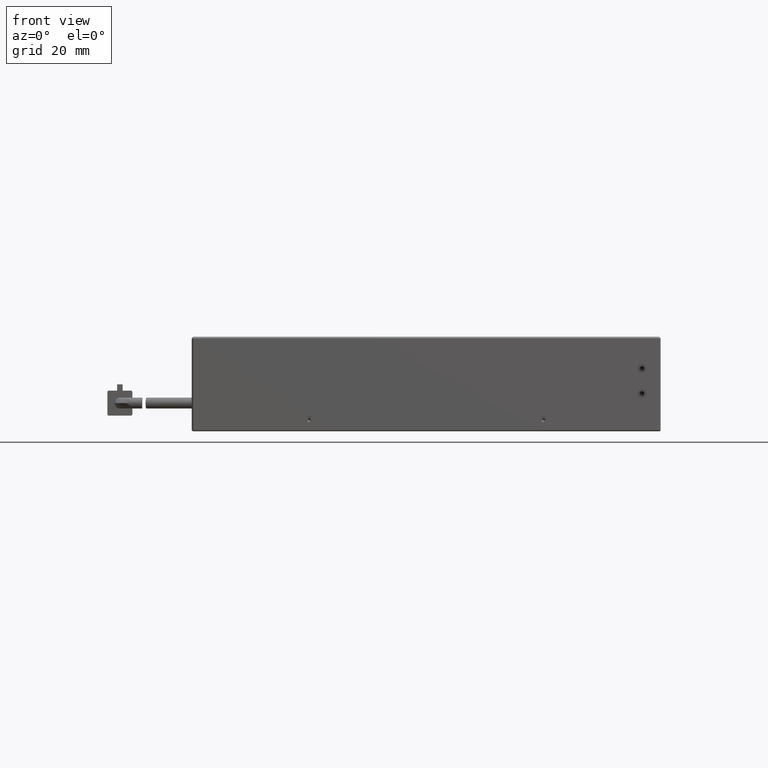
[diagram: clean part render]
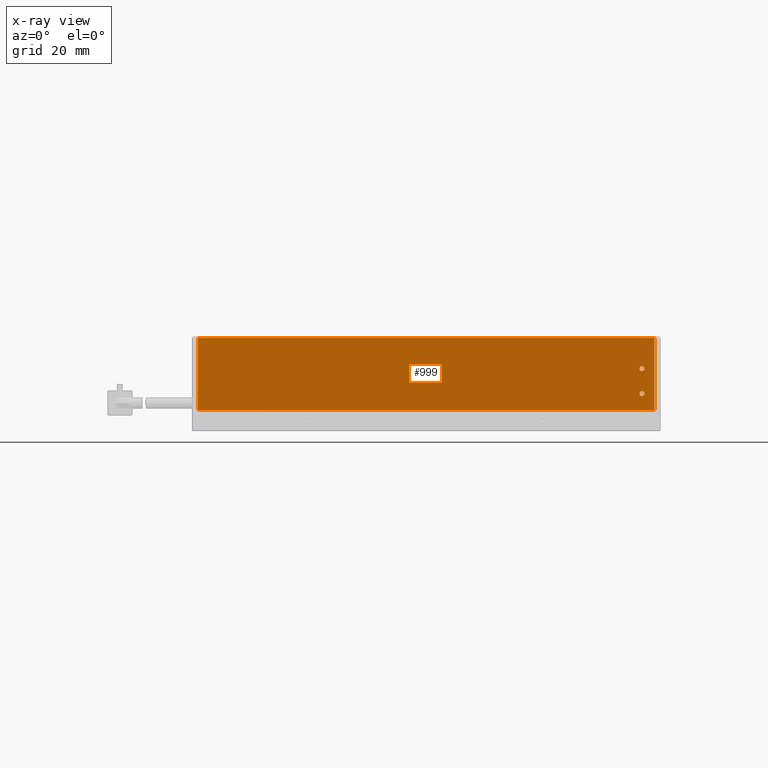
[diagram: x-ray — body ghosted, one internal face saturated and labeled with its STEP entity id]
A machine part, front view, then the same camera in x-ray: the body is ghosted and one INTERNAL B-rep face — a face not visible from any outside direction — is saturated and labeled: STEP entity #999.
In plain terms, the highlighted planar face has unit normal (0, 1, 0).
Its self-contained STEP definition (entity closure, byte-faithful):
#257 = EDGE_CURVE ( 'NONE', #5670, #20102, #1204, .T. ) ;
#396 = DIRECTION ( 'NONE',  ( 7.978533672646619300E-017, -1.000000000000000000, -6.487865800153258500E-016 ) ) ;
#415 = CARTESIAN_POINT ( 'NONE',  ( -82.83175061932291800, -62.25061932287364600, 1.799999999999968300 ) ) ;
#447 = CARTESIAN_POINT ( 'NONE',  ( 59.16824938067784200, -62.25061932287292200, 6.999999999999968000 ) ) ;
#999 = ADVANCED_FACE ( 'NONE', ( #9017, #17883, #5313 ), #20199, .F. ) ;
#1204 = LINE ( 'NONE', #5726, #16945 ) ;
#1466 = CARTESIAN_POINT ( 'NONE',  ( 63.16824938067708200, -62.25061932287366100, 1.799999999999968300 ) ) ;
#1541 = VERTEX_POINT ( 'NONE', #4229 ) ;
#1803 = ORIENTED_EDGE ( 'NONE', *, *, #6750, .F. ) ;
#1930 = CIRCLE ( 'NONE', #3633, 0.7999999999999951600 ) ;
#2041 = DIRECTION ( 'NONE',  ( -1.000000000000000000, 0.0000000000000000000, 0.0000000000000000000 ) ) ;
#2061 = CARTESIAN_POINT ( 'NONE',  ( 63.16824938067708200, -62.25061932287367500, 24.79999999999996900 ) ) ;
#2189 = CARTESIAN_POINT ( 'NONE',  ( 59.96824938067784000, -62.25061932287293600, 14.99999999999997200 ) ) ;
#2811 = VERTEX_POINT ( 'NONE', #14057 ) ;
#2848 = VERTEX_POINT ( 'NONE', #12680 ) ;
#2928 = CARTESIAN_POINT ( 'NONE',  ( 59.16824938067784200, -62.25061932287292200, 6.999999999999968000 ) ) ;
#3091 = EDGE_LOOP ( 'NONE', ( #18837, #17052 ) ) ;
#3633 = AXIS2_PLACEMENT_3D ( 'NONE', #2928, #13938, #4506 ) ;
#3749 = DIRECTION ( 'NONE',  ( 7.978533672646619300E-017, -1.000000000000000000, -6.487865800153258500E-016 ) ) ;
#3830 = VERTEX_POINT ( 'NONE', #2189 ) ;
#4135 = DIRECTION ( 'NONE',  ( -1.000000000000000000, 1.103213455723619500E-016, -6.938351866335900600E-019 ) ) ;
#4229 = CARTESIAN_POINT ( 'NONE',  ( 58.36824938067784500, -62.25061932287293600, 14.99999999999997000 ) ) ;
#4506 = DIRECTION ( 'NONE',  ( -1.000000000000000000, 0.0000000000000000000, 0.0000000000000000000 ) ) ;
#4616 = DIRECTION ( 'NONE',  ( 1.000000000000000000, -1.103213455723619500E-016, 6.938351866335900600E-019 ) ) ;
#4747 = LINE ( 'NONE', #2061, #12122 ) ;
#5237 = ORIENTED_EDGE ( 'NONE', *, *, #14757, .F. ) ;
#5313 = FACE_BOUND ( 'NONE', #3091, .T. ) ;
#5450 = EDGE_CURVE ( 'NONE', #2848, #2811, #1930, .T. ) ;
#5670 = VERTEX_POINT ( 'NONE', #9694 ) ;
#5726 = CARTESIAN_POINT ( 'NONE',  ( 63.16824938067708200, -62.25061932287366100, 1.799999999999968300 ) ) ;
#5947 = VERTEX_POINT ( 'NONE', #20126 ) ;
#5955 = ORIENTED_EDGE ( 'NONE', *, *, #18242, .F. ) ;
#6331 = VECTOR ( 'NONE', #9120, 1000.000000000000000 ) ;
#6750 = EDGE_CURVE ( 'NONE', #9733, #5947, #4747, .T. ) ;
#8943 = EDGE_LOOP ( 'NONE', ( #5237, #9326, #5955, #1803 ) ) ;
#9017 = FACE_OUTER_BOUND ( 'NONE', #8943, .T. ) ;
#9120 = DIRECTION ( 'NONE',  ( 6.938351866336616100E-019, 6.487865800153258500E-016, -1.000000000000000000 ) ) ;
#9326 = ORIENTED_EDGE ( 'NONE', *, *, #257, .F. ) ;
#9397 = ORIENTED_EDGE ( 'NONE', *, *, #17941, .F. ) ;
#9694 = CARTESIAN_POINT ( 'NONE',  ( 63.16824938067709600, -62.25061932287366100, 1.799999999999968300 ) ) ;
#9733 = VERTEX_POINT ( 'NONE', #19286 ) ;
#9834 = CARTESIAN_POINT ( 'NONE',  ( 59.16824938067784200, -62.25061932287293600, 14.99999999999997000 ) ) ;
#10724 = DIRECTION ( 'NONE',  ( -6.938351866336616100E-019, -6.487865800153258500E-016, 1.000000000000000000 ) ) ;
#11408 = DIRECTION ( 'NONE',  ( -1.000000000000000000, 0.0000000000000000000, 0.0000000000000000000 ) ) ;
#11448 = DIRECTION ( 'NONE',  ( 7.978533672646619300E-017, -1.000000000000000000, -6.487865800153258500E-016 ) ) ;
#12122 = VECTOR ( 'NONE', #19366, 1000.000000000000000 ) ;
#12680 = CARTESIAN_POINT ( 'NONE',  ( 59.96824938067784000, -62.25061932287292200, 6.999999999999968900 ) ) ;
#12803 = EDGE_CURVE ( 'NONE', #2811, #2848, #19522, .T. ) ;
#13198 = CARTESIAN_POINT ( 'NONE',  ( 59.16824938067784200, -62.25061932287293600, 14.99999999999997000 ) ) ;
#13938 = DIRECTION ( 'NONE',  ( 7.978533672646619300E-017, -1.000000000000000000, -6.487865800153258500E-016 ) ) ;
#14048 = DIRECTION ( 'NONE',  ( 1.103213455723619500E-016, 1.000000000000000000, 6.487865800153258500E-016 ) ) ;
#14057 = CARTESIAN_POINT ( 'NONE',  ( 58.36824938067784500, -62.25061932287292200, 6.999999999999968000 ) ) ;
#14216 = CARTESIAN_POINT ( 'NONE',  ( -82.83175061932293200, -62.25061932287363200, 1.799999999999968300 ) ) ;
#14542 = ORIENTED_EDGE ( 'NONE', *, *, #16120, .F. ) ;
#14677 = LINE ( 'NONE', #16961, #6331 ) ;
#14755 = DIRECTION ( 'NONE',  ( -1.000000000000000000, 0.0000000000000000000, 0.0000000000000000000 ) ) ;
#14757 = EDGE_CURVE ( 'NONE', #20102, #9733, #19986, .T. ) ;
#15230 = AXIS2_PLACEMENT_3D ( 'NONE', #9834, #396, #11408 ) ;
#15583 = AXIS2_PLACEMENT_3D ( 'NONE', #1466, #14048, #4616 ) ;
#15822 = VECTOR ( 'NONE', #10724, 1000.000000000000000 ) ;
#16120 = EDGE_CURVE ( 'NONE', #3830, #1541, #19450, .T. ) ;
#16179 = CIRCLE ( 'NONE', #17258, 0.7999999999999951600 ) ;
#16945 = VECTOR ( 'NONE', #4135, 1000.000000000000000 ) ;
#16961 = CARTESIAN_POINT ( 'NONE',  ( 63.16824938067708200, -62.25061932287366100, 1.799999999999968300 ) ) ;
#17052 = ORIENTED_EDGE ( 'NONE', *, *, #5450, .F. ) ;
#17258 = AXIS2_PLACEMENT_3D ( 'NONE', #13198, #3749, #14755 ) ;
#17844 = AXIS2_PLACEMENT_3D ( 'NONE', #447, #11448, #2041 ) ;
#17883 = FACE_BOUND ( 'NONE', #18883, .T. ) ;
#17941 = EDGE_CURVE ( 'NONE', #1541, #3830, #16179, .T. ) ;
#18242 = EDGE_CURVE ( 'NONE', #5947, #5670, #14677, .T. ) ;
#18837 = ORIENTED_EDGE ( 'NONE', *, *, #12803, .F. ) ;
#18883 = EDGE_LOOP ( 'NONE', ( #9397, #14542 ) ) ;
#19286 = CARTESIAN_POINT ( 'NONE',  ( -82.83175061932291800, -62.25061932287366100, 24.79999999999996900 ) ) ;
#19366 = DIRECTION ( 'NONE',  ( 1.000000000000000000, -1.103213455723619500E-016, 6.938351866335900600E-019 ) ) ;
#19450 = CIRCLE ( 'NONE', #15230, 0.7999999999999951600 ) ;
#19522 = CIRCLE ( 'NONE', #17844, 0.7999999999999951600 ) ;
#19986 = LINE ( 'NONE', #14216, #15822 ) ;
#20102 = VERTEX_POINT ( 'NONE', #415 ) ;
#20126 = CARTESIAN_POINT ( 'NONE',  ( 63.16824938067709600, -62.25061932287367500, 24.79999999999996900 ) ) ;
#20199 = PLANE ( 'NONE',  #15583 ) ;